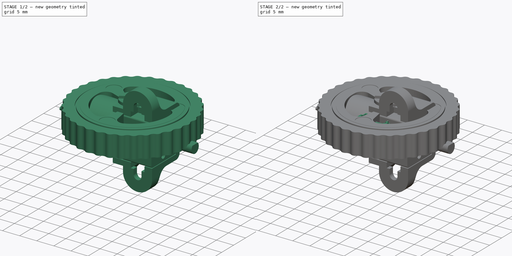
[diagram: build sequence overview — one tinted view per stage of 2, left to right]
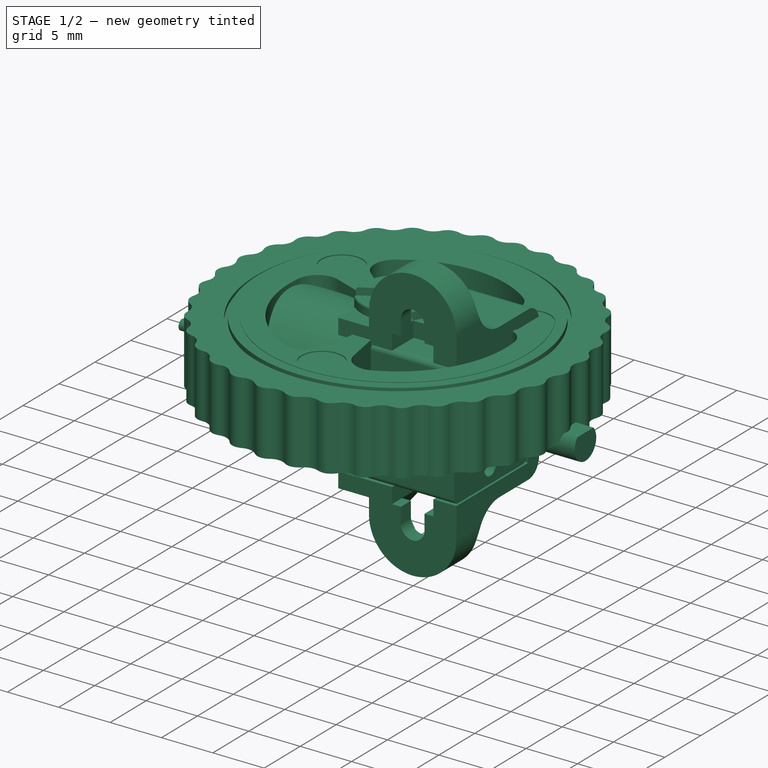
[diagram: stage 1 of 2 — iso view after this stage's code; geometry added in this stage tinted green]
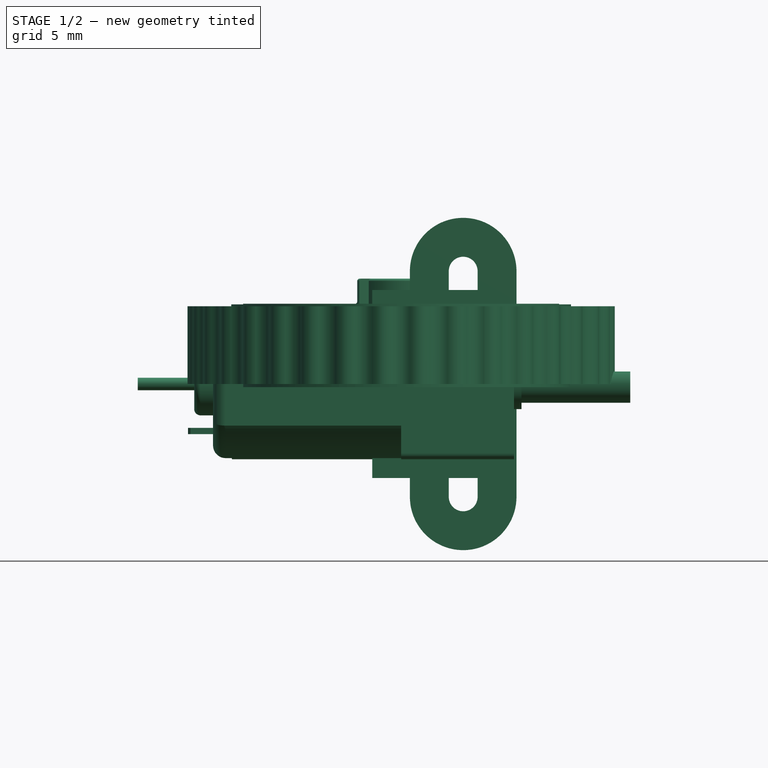
[diagram: stage 1 of 2 — front view after this stage's code; geometry added in this stage tinted green]
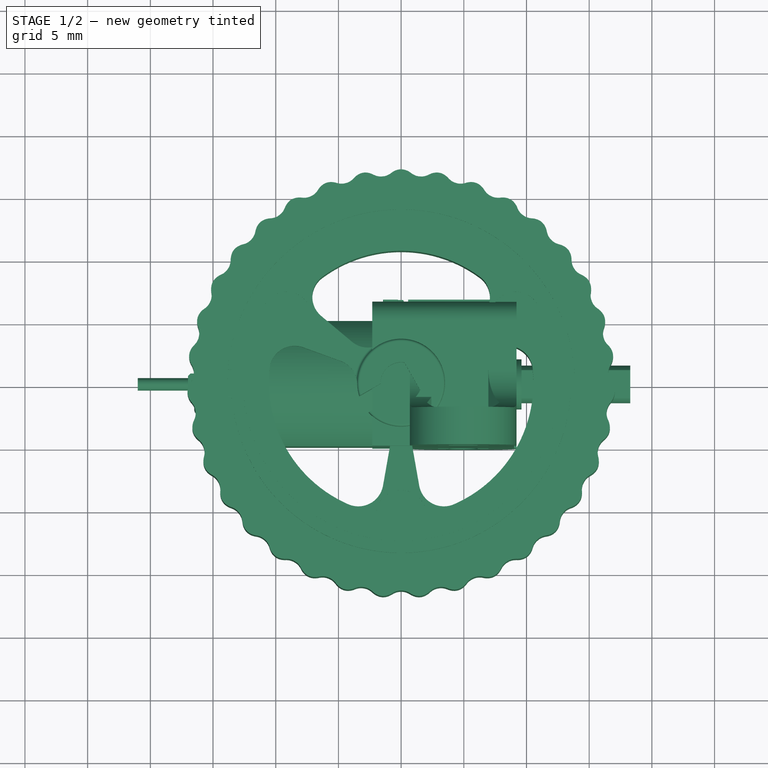
[diagram: stage 1 of 2 — top view after this stage's code; geometry added in this stage tinted green]
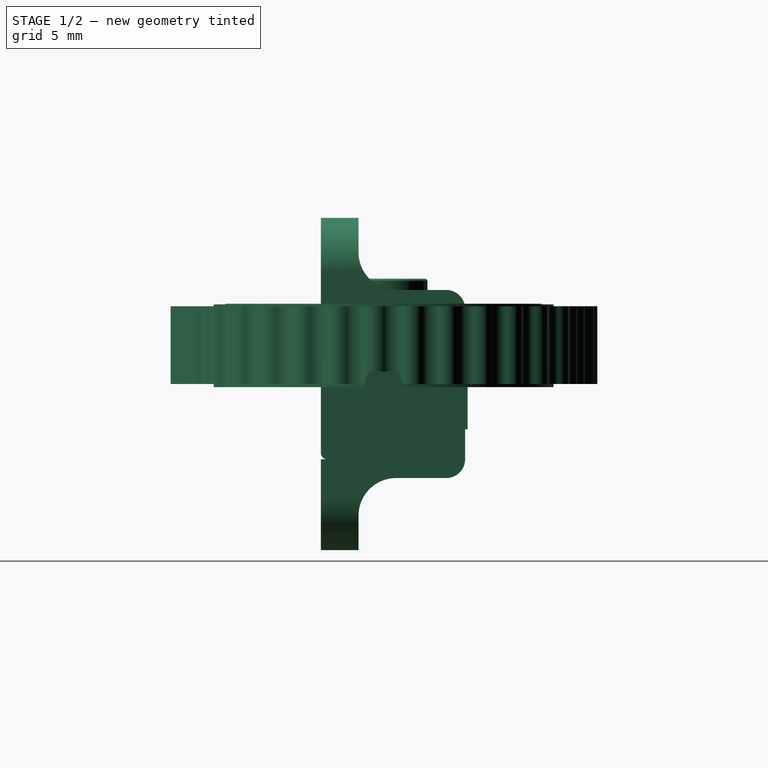
[diagram: stage 1 of 2 — right view after this stage's code; geometry added in this stage tinted green]
FCSTD DOCUMENT  (FreeCAD 0.20R29603 (Git))
Label: Motors
License: All rights reserved
LicenseURL: http://en.wikipedia.org/wiki/All_rights_reserved
objects: PartDesign::CoordinateSystem×6, Sketcher::SketchObject×5, Part::Feature×4, PartDesign::FeatureBase×4, PartDesign::Line×4, App::Link×4, PartDesign::Body×4, App::DocumentObjectGroup×3, App::FeaturePython×1, PartDesign::SubShapeBinder×1, App::Part×1
note: 28 computed .brp shape members not serialized (recipe doc carries the construction recipe); baked Part::Feature solids carry a one-line shape summary decoded from their .brp

FEATURE [PartDesign::CoordinateSystem] LCS_Origin
  AttacherType = Attacher::AttachEngine3D
  MapMode = 2
  Support = -> [X_Axis]
FEATURE [App::DocumentObjectGroup] Constraints
FEATURE [App::FeaturePython] Variables  # WARN: FeaturePython — macro-defined, semantics opaque (R4)
  Type = App::PropertyContainer
FEATURE [App::DocumentObjectGroup] Configurations
FEATURE [Part::Feature] Part__Feature  label="motor_with_bracket_model"
  shape: bbox 39.27 x 12.11 x 26.5 mm, 981 faces (baked)
FEATURE [PartDesign::FeatureBase] BaseFeature  label="motor_with_bracket_base"
  BaseFeature = -> Part__Feature
FEATURE [PartDesign::CoordinateSystem] LCS_0002  label="encoder_disc_lcs"
  AttacherType = Attacher::AttachEngine3D
  MapMode = 11
  Placement = pos=(0,0,0) rot=(0,0,1;1.5708rad)
  Support = -> [BaseFeature002]
FEATURE [PartDesign::Body] encoder_disc_body
  BaseFeature = -> Part__Feature002
  Group = -> [BaseFeature002,LCS_0002]
  Origin = -> Origin003
  Tip = -> BaseFeature002
FEATURE [App::Link] encoder_disc_body001
  AttachedBy = #LCS_0002
  AttachedTo = motor_with_bracket001#motor_shaft_lcs
  AttachmentOffset = pos=(0,0,-2) rot=(0,0,1;0rad)
  LinkPlacement = pos=(19,1.4e-15,5) rot=(0.57735,0.57735,0.57735;2.0944rad)
  LinkedObject = -> encoder_disc_body
  Placement = pos=(19,1.4e-15,5) rot=(0.57735,0.57735,0.57735;2.0944rad)
  SolverId = Asm4EE
  expr: Placement = motor_with_bracket001.Placement * motor_shaft_lcs.Placement * AttachmentOffset * LCS_0002.Placement ^ -1
FEATURE [Sketcher::SketchObject] Sketch002  label="rear_hole_sketch"
  ExternalGeometry = -> [BaseFeature]
  FullyConstrained = true
  MapMode = 5
  Placement = pos=(0,-5,0) rot=(1,0,0;1.5708rad)
  Support = -> [BaseFeature]
  sketch-geometry (1):
    g0: Circle CenterX=4.95 CenterY=-9 CenterZ=0 NormalX=0 NormalY=0 NormalZ=1 AngleXU=0 Radius=1.15
  constraints (2):
    c: PointOnObject(g-4,g0)
    c: Tangent(g-3,g0) = -1.5708
FEATURE [PartDesign::Line] HoleAxis_2  label="rear_hole_lcs"
  AttacherType = Attacher::AttachEngineLine
  Length = 3.25269
  MapMode = 19
  Placement = pos=(4.95,-5,-9) rot=(1,0,0;1.5708rad)
  ResizeMode = 1
  Support = -> [Sketch002]
FEATURE [Part::Feature] Part__Feature004  label="wheel_model"
  Placement = pos=(-12.9564,-8.37433,3.10714) rot=(0.664456,-0.342046,0.664456;3.80073rad)
  shape: bbox 8.651 x 34.56 x 34.54 mm, 208 faces, 2 solids (baked)
FEATURE [PartDesign::FeatureBase] BaseFeature003  label="wheel_base"
  BaseFeature = -> Part__Feature004
FEATURE [PartDesign::CoordinateSystem] LCS_0003  label="wheel_lcs"
  AttacherType = Attacher::AttachEngine3D
  AttachmentOffset = pos=(0,0,0) rot=(0,0,-1;0.436332rad)
  MapMode = 11
  Placement = pos=(2e-16,0,8.4) rot=(0.518672,0.854973,0;3.14159rad)
  Support = -> [BaseFeature003]
FEATURE [PartDesign::Body] wheel_body
  BaseFeature = -> Part__Feature004
  Group = -> [BaseFeature003,LCS_0003]
  Origin = -> Origin004
  Tip = -> BaseFeature003
FEATURE [Sketcher::SketchObject] Sketch003  label="output_shaft_sketch"
  ExternalGeometry = -> [BaseFeature]
  FullyConstrained = true
  MapMode = 5
  Placement = pos=(18.27,0,0) rot=(0.57735,0.57735,0.57735;2.0944rad)
  Support = -> [BaseFeature]
  sketch-geometry (1):
    g0: Circle CenterX=0 CenterY=0 CenterZ=0 NormalX=0 NormalY=0 NormalZ=1 AngleXU=0 Radius=1.5
  constraints (2):
    c: Coincident(g0,g-3)
    c: Equal(g0,g-3)
FEATURE [PartDesign::Line] HoleAxis_3  label="output_shaft_lcs"
  AttacherType = Attacher::AttachEngineLine
  Length = 4.24264
  MapMode = 19
  Placement = pos=(18.27,0,0) rot=(0.57735,0.57735,0.57735;2.0944rad)
  ResizeMode = 1
  Support = -> [Sketch003]
FEATURE [PartDesign::Body] motor_with_bracket  label="motor_with_bracket_body"
  BaseFeature = -> Part__Feature
  Group = -> [BaseFeature,LCS_0,Sketch,HoleAxis_1,Sketch001,motor_shaft_lcs,Sketch002,HoleAxis_2,Sketch003,HoleAxis_3]
  Origin = -> Origin001
  Tip = -> BaseFeature
FEATURE [App::DocumentObjectGroup] Parts
  Group = -> [motor_with_bracket,Part__Feature,encoder_pcb_body,Part__Feature001,encoder_disc_body,Part__Feature002,wheel_body,Part__Feature004]
FEATURE [App::Link] wheel_body001
  AttachedBy = #LCS_0003
  AttachedTo = motor_with_bracket001#HoleAxis_3
  AttachmentOffset = pos=(0,0,-8.5) rot=(0,0,1;0rad)
  LinkPlacement = pos=(-18.17,2e-16,5) rot=(-0.460425,-0.758959,-0.460425;4.44001rad)
  LinkedObject = -> wheel_body
  Placement = pos=(-18.17,2e-16,5) rot=(-0.460425,-0.758959,-0.460425;4.44001rad)
  SolverId = Asm4EE
  expr: Placement = motor_with_bracket001.Placement * HoleAxis_3.Placement * AttachmentOffset * LCS_0003.Placement ^ -1
FEATURE [PartDesign::SubShapeBinder] __motor_with_bracket001__
  BindCopyOnChange = 0
  BindMode = 0
  ClaimChildren = false
  Context = -> Assembly [__motor_with_bracket001__.]
  Fuse = false
  MakeFace = false
  OffsetFill = false
  OffsetIntersection = false
  OffsetJoinType = 0
  OffsetOpenResult = false
  PartialLoad = false
  Relative = true
  Support = -> [motor_with_bracket001]
  _Version = 2
FEATURE [Sketcher::SketchObject] Sketch_1  label="motor_mount_hole"
  ExternalGeometry = -> [__motor_with_bracket001__]
  FullyConstrained = true
  Support = -> [BaseFeature]
  sketch-geometry (1):
    g0: Circle CenterX=-4.95 CenterY=-9 CenterZ=0 NormalX=0 NormalY=0 NormalZ=1 AngleXU=0 Radius=1.15
  constraints (2):
    c: Symmetric(g-3,g-4,g0)
    c: Tangent(g-3,g0)
FEATURE [PartDesign::Line] HoleAxis_4
  AttacherType = Attacher::AttachEngineLine
  Length = 3.24512
  MapMode = 19
  Placement = pos=(-4.95,-9,0) rot=(0,0,1;0rad)
  ResizeMode = 1
  Support = -> [Sketch_1]
FEATURE [App::Part] Assembly
  AssemblyType = Part::Link
  Group = -> [LCS_Origin,Constraints,Variables,Configurations,motor_with_bracket001,encoder_pcb_body001,encoder_disc_body001,wheel_body001,Sketch_1,HoleAxis_4,__motor_with_bracket001__]
  Origin = -> Origin
  Type = Assembly
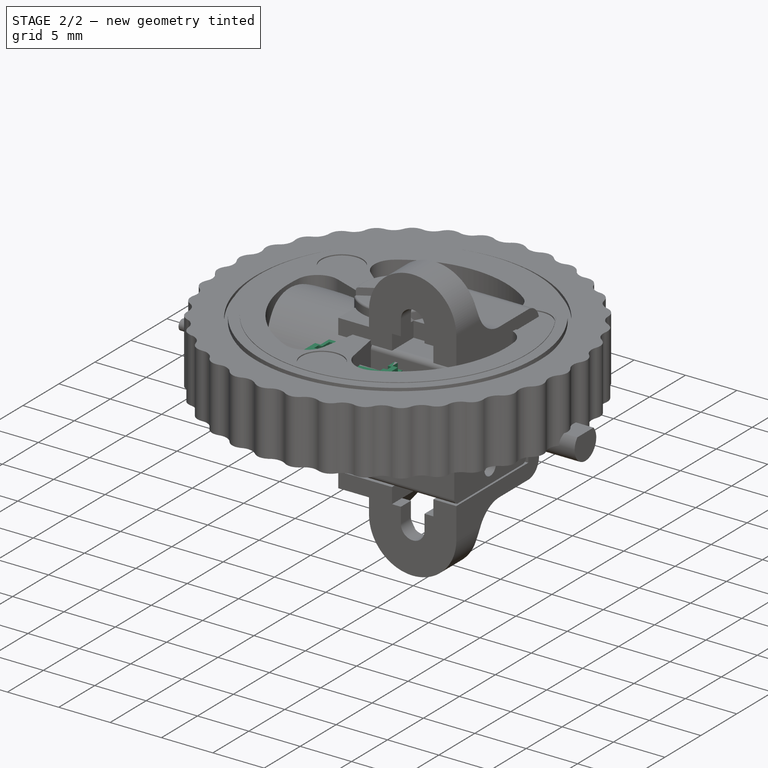
[diagram: stage 2 of 2 — iso view after this stage's code; geometry added in this stage tinted green]
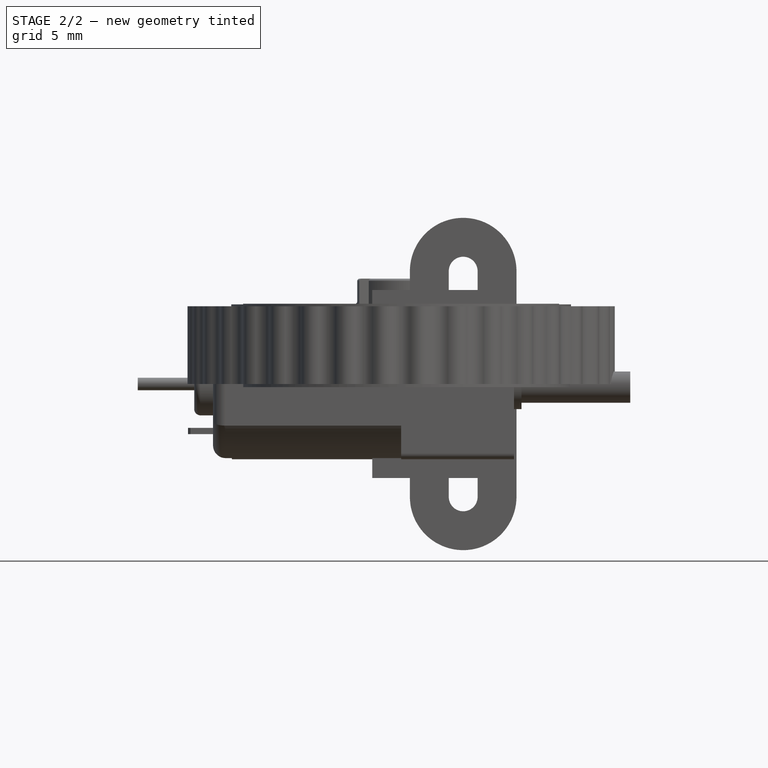
[diagram: stage 2 of 2 — front view after this stage's code; geometry added in this stage tinted green]
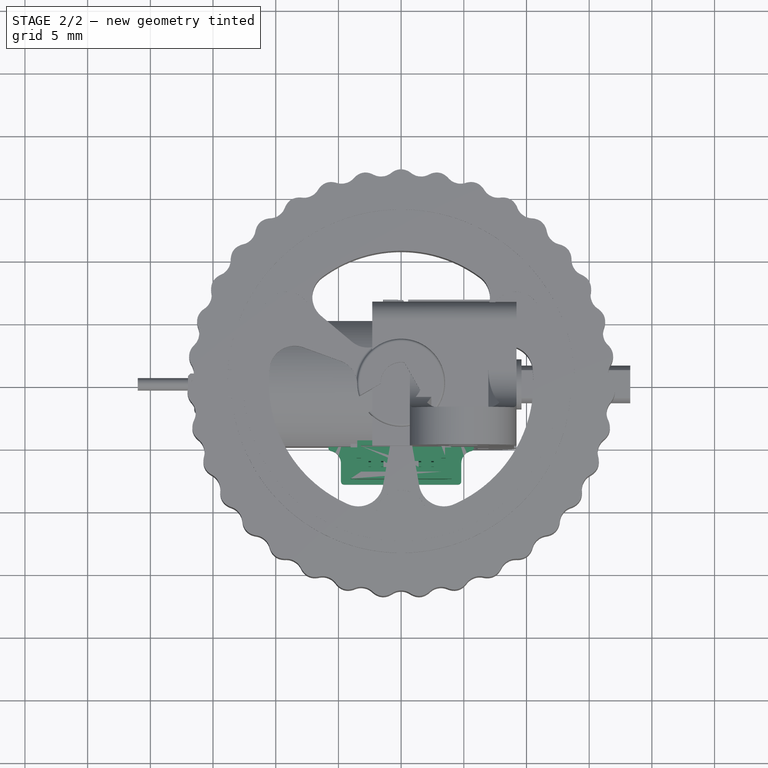
[diagram: stage 2 of 2 — top view after this stage's code; geometry added in this stage tinted green]
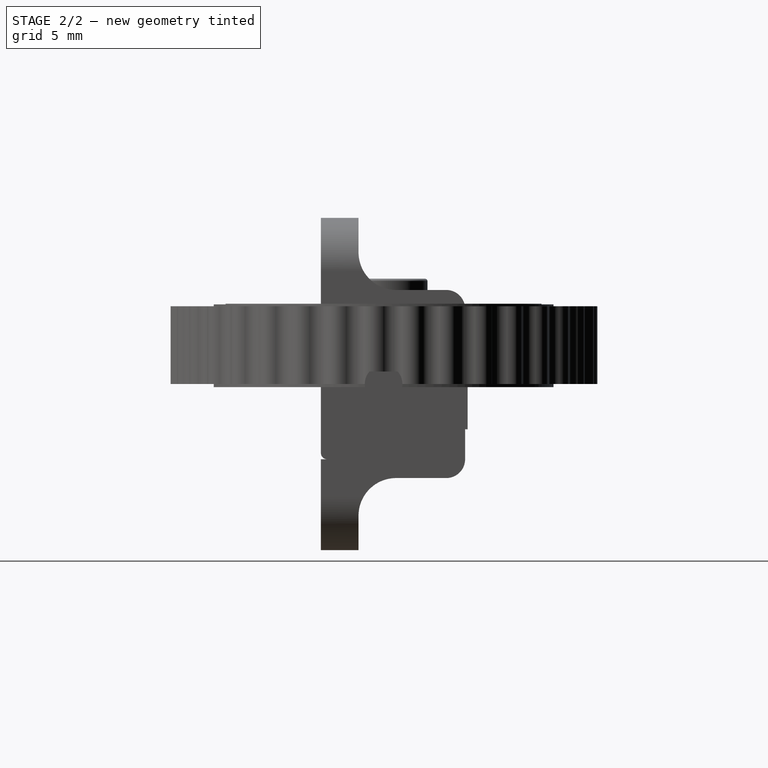
[diagram: stage 2 of 2 — right view after this stage's code; geometry added in this stage tinted green]
FEATURE [PartDesign::CoordinateSystem] LCS_0  label="base_lcs"
  AttacherType = Attacher::AttachEngine3D
  AttachmentOffset = pos=(0,0,0) rot=(0,1,0;3.14159rad)
  MapMode = 5
  Placement = pos=(0,-5,0) rot=(0,0.707107,0.707107;3.14159rad)
  Support = -> [BaseFeature]
FEATURE [Sketcher::SketchObject] Sketch  label="front_hole_sketch"
  ExternalGeometry = -> [BaseFeature]
  FullyConstrained = true
  MapMode = 5
  Placement = pos=(0,-5,0) rot=(1,0,0;1.5708rad)
  Support = -> [BaseFeature]
  sketch-geometry (1):
    g0: Circle CenterX=4.95 CenterY=9 CenterZ=0 NormalX=0 NormalY=0 NormalZ=1 AngleXU=0 Radius=1.15
  constraints (2):
    c: PointOnObject(g-4,g0)
    c: Tangent(g-3,g0) = -1.5708
FEATURE [PartDesign::Line] HoleAxis_1  label="front_hole_lcs"
  AttacherType = Attacher::AttachEngineLine
  Length = 3.25269
  MapMode = 19
  Placement = pos=(4.95,-5,9) rot=(1,0,0;1.5708rad)
  ResizeMode = 1
  Support = -> [Sketch]
FEATURE [App::Link] motor_with_bracket001
  AttachedBy = #LCS_0
  AttachedTo = Parent Assembly#LCS_Origin
  LinkPlacement = pos=(4e-16,9e-16,5) rot=(0,-0.707107,-0.707107;3.14159rad)
  LinkedObject = -> motor_with_bracket
  Placement = pos=(4e-16,9e-16,5) rot=(0,-0.707107,-0.707107;3.14159rad)
  SolverId = Asm4EE
  expr: Placement = LCS_Origin.Placement * AttachmentOffset * LCS_0.Placement ^ -1
FEATURE [Part::Feature] Part__Feature001  label="encoder_pcb_model"
  shape: bbox 11.6 x 12.8 x 5.109 mm, 661 faces (baked)
FEATURE [PartDesign::FeatureBase] BaseFeature001  label="encoder_pcb_base"
  BaseFeature = -> Part__Feature001
FEATURE [PartDesign::CoordinateSystem] LCS_0001  label="encoder_base_lcs"
  AttacherType = Attacher::AttachEngine3D
  MapMode = 11
  Placement = pos=(0,0,0) rot=(0,0,-1;1.5708rad)
  Support = -> [BaseFeature001]
FEATURE [PartDesign::Body] encoder_pcb_body
  BaseFeature = -> Part__Feature001
  Group = -> [BaseFeature001,LCS_0001]
  Origin = -> Origin002
  Tip = -> BaseFeature001
FEATURE [Sketcher::SketchObject] Sketch001  label="motor_shaft_sketch"
  ExternalGeometry = -> [BaseFeature]
  FullyConstrained = true
  MapMode = 5
  Placement = pos=(-21,0,0) rot=(0.57735,-0.57735,-0.57735;2.0944rad)
  Support = -> [BaseFeature]
  sketch-geometry (1):
    g0: Circle CenterX=0 CenterY=0 CenterZ=0 NormalX=0 NormalY=0 NormalZ=1 AngleXU=0 Radius=0.5
  constraints (2):
    c: Coincident(g0,g-3)
    c: Equal(g0,g-3)
FEATURE [PartDesign::CoordinateSystem] motor_shaft_lcs
  AttacherType = Attacher::AttachEngine3D
  MapMode = 11
  Placement = pos=(-21,0,0) rot=(0.57735,0.57735,-0.57735;4.18879rad)
  Support = -> [BaseFeature]
FEATURE [App::Link] encoder_pcb_body001
  AttachedBy = #LCS_0001
  AttachedTo = motor_with_bracket001#motor_shaft_lcs
  AttachmentOffset = pos=(0,0,-4.4) rot=(0,0,1;0rad)
  LinkPlacement = pos=(16.6,1.4e-15,5) rot=(0.57735,-0.57735,0.57735;4.18879rad)
  LinkedObject = -> encoder_pcb_body
  Placement = pos=(16.6,1.4e-15,5) rot=(0.57735,-0.57735,0.57735;4.18879rad)
  SolverId = Asm4EE
  expr: Placement = motor_with_bracket001.Placement * motor_shaft_lcs.Placement * AttachmentOffset * LCS_0001.Placement ^ -1
FEATURE [Part::Feature] Part__Feature002  label="encoder_disc_model"
  shape: bbox 7.65 x 7.65 x 2 mm, 6 faces (baked)
FEATURE [PartDesign::FeatureBase] BaseFeature002  label="encoder_disc_base"
  BaseFeature = -> Part__Feature002
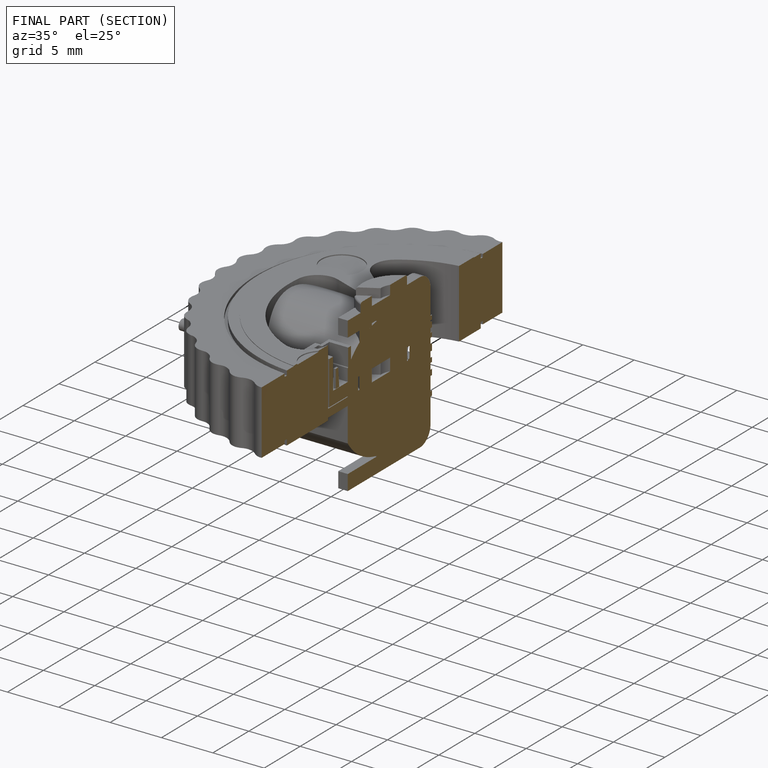
[diagram: finished part — half-section view (interior)]
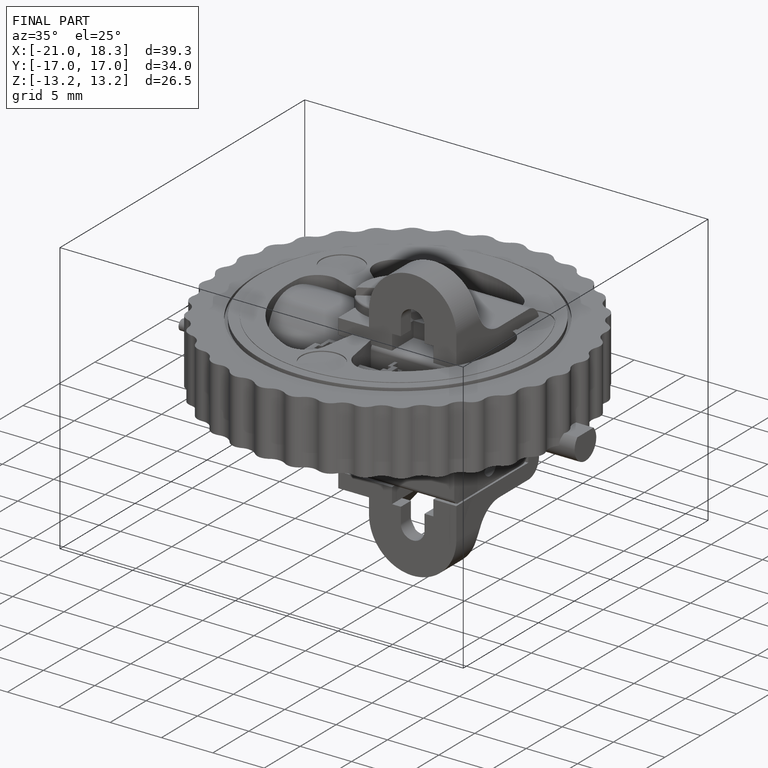
[diagram: finished part — iso view with bounding-box wireframe]
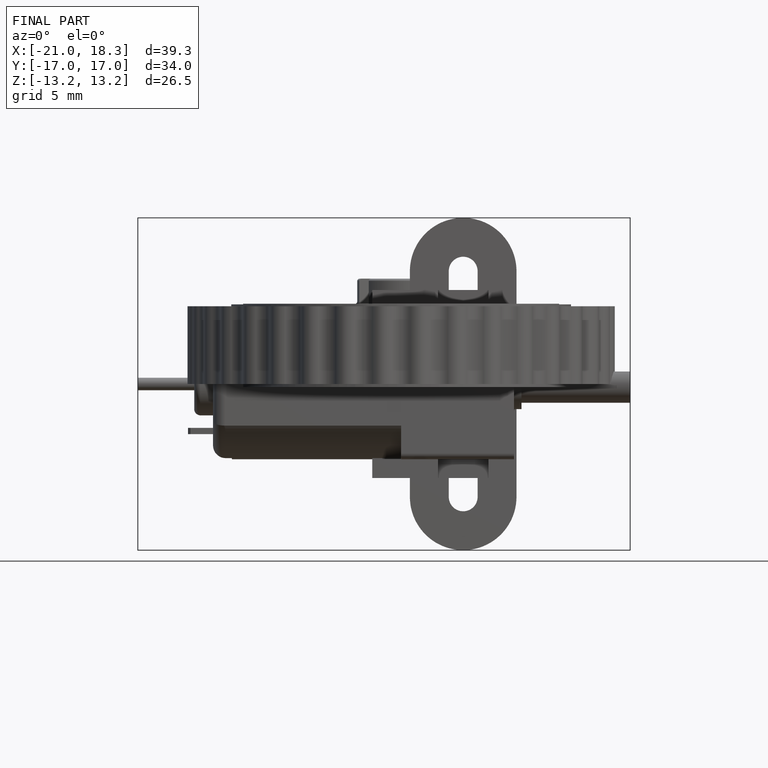
[diagram: finished part — front view with bounding-box wireframe]
